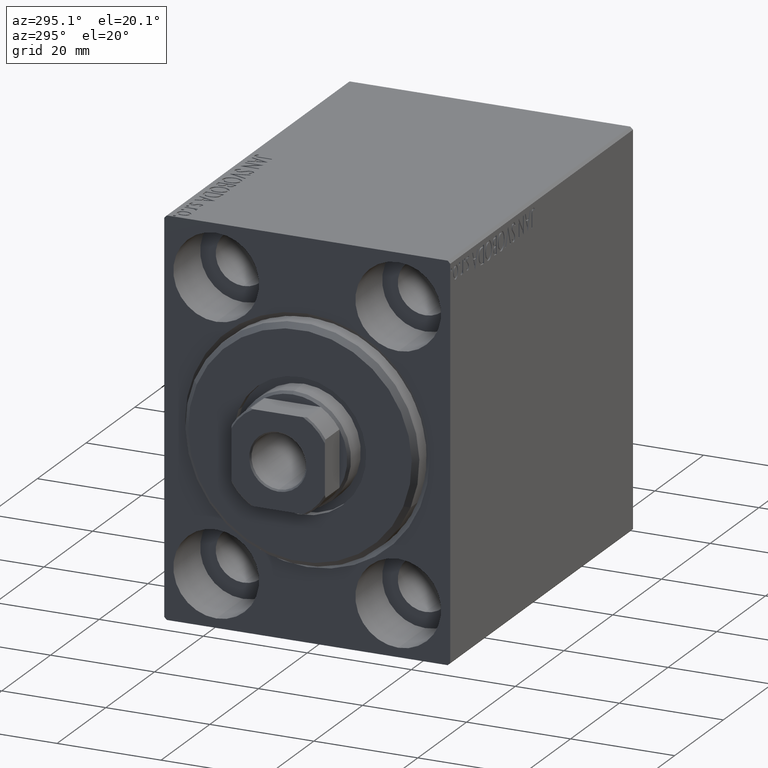
[diagram: clean part render]
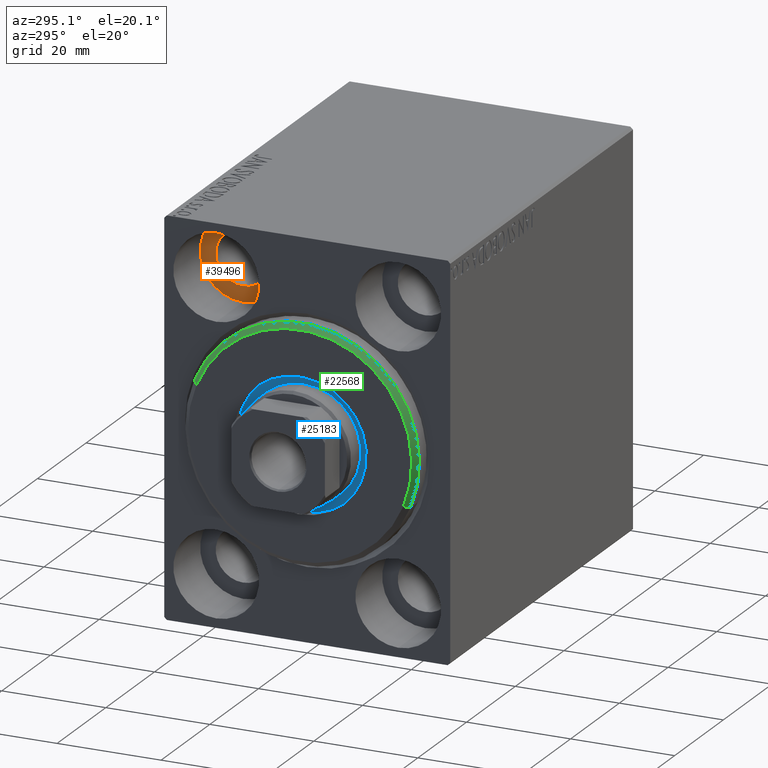
[diagram: same view with three faces highlighted in distinct colors, each labeled with its STEP entity id]
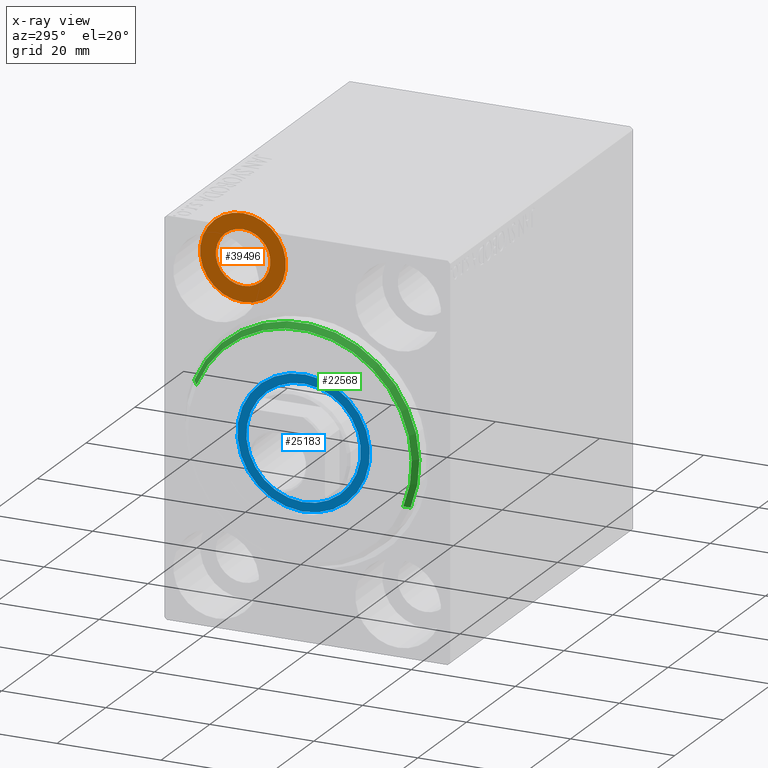
[diagram: x-ray of the same camera — body ghosted, the three highlighted faces saturated]
A machine part, auxiliary view with three faces highlighted in distinct colors.
The next image is the same camera in x-ray (body ghosted, the three faces saturated) — at least one of them is partly hidden behind the body in this view.
Their STEP definitions:

[orange] entity #39496 — the highlighted planar face has unit normal (-1, 0, 0).
#883 = EDGE_CURVE ( 'NONE', #13331, #31165, #38472, .T. ) ;
#1480 = CIRCLE ( 'NONE', #25400, 5.249999999999997335 ) ;
#2050 = CARTESIAN_POINT ( 'NONE',  ( 10.99999999999999645, 17.50000000000000355, 27.49999999999999645 ) ) ;
#6973 = PLANE ( 'NONE',  #41236 ) ;
#8971 = ORIENTED_EDGE ( 'NONE', *, *, #24203, .T. ) ;
#11241 = DIRECTION ( 'NONE',  ( -1.000000000000000000, 0.000000000000000000, 0.000000000000000000 ) ) ;
#11558 = DIRECTION ( 'NONE',  ( -1.000000000000000000, 0.000000000000000000, 0.000000000000000000 ) ) ;
#12026 = CIRCLE ( 'NONE', #19769, 8.249999999999992895 ) ;
#12912 = EDGE_LOOP ( 'NONE', ( #8971, #22614 ) ) ;
#13158 = AXIS2_PLACEMENT_3D ( 'NONE', #2050, #41734, #22102 ) ;
#13331 = VERTEX_POINT ( 'NONE', #30750 ) ;
#13587 = DIRECTION ( 'NONE',  ( -1.000000000000000000, 0.000000000000000000, 0.000000000000000000 ) ) ;
#15631 = EDGE_CURVE ( 'NONE', #31165, #13331, #1480, .T. ) ;
#15920 = CARTESIAN_POINT ( 'NONE',  ( 10.99999999999999645, 17.50000000000000355, 32.74999999999999289 ) ) ;
#16309 = CARTESIAN_POINT ( 'NONE',  ( 11.00000000000000000, 17.50000000000000355, 19.25000000000000000 ) ) ;
#18631 = VERTEX_POINT ( 'NONE', #16309 ) ;
#19038 = CARTESIAN_POINT ( 'NONE',  ( 11.00000000000000000, 17.50000000000000355, 27.49999999999999645 ) ) ;
#19769 = AXIS2_PLACEMENT_3D ( 'NONE', #19038, #11558, #32052 ) ;
#19836 = ORIENTED_EDGE ( 'NONE', *, *, #15631, .F. ) ;
#19952 = EDGE_CURVE ( 'NONE', #18631, #36306, #12026, .T. ) ;
#22102 = DIRECTION ( 'NONE',  ( 0.000000000000000000, 0.000000000000000000, 1.000000000000000000 ) ) ;
#22233 = DIRECTION ( 'NONE',  ( 0.000000000000000000, 0.000000000000000000, 1.000000000000000000 ) ) ;
#22614 = ORIENTED_EDGE ( 'NONE', *, *, #19952, .T. ) ;
#23283 = FACE_BOUND ( 'NONE', #29431, .T. ) ;
#23977 = CARTESIAN_POINT ( 'NONE',  ( 11.00000000000000000, 17.50000000000000355, 35.74999999999999289 ) ) ;
#24203 = EDGE_CURVE ( 'NONE', #36306, #18631, #36086, .T. ) ;
#25400 = AXIS2_PLACEMENT_3D ( 'NONE', #32584, #39405, #38751 ) ;
#27242 = FACE_OUTER_BOUND ( 'NONE', #12912, .T. ) ;
#27623 = AXIS2_PLACEMENT_3D ( 'NONE', #34811, #11241, #22233 ) ;
#29431 = EDGE_LOOP ( 'NONE', ( #19836, #39136 ) ) ;
#30750 = CARTESIAN_POINT ( 'NONE',  ( 10.99999999999999645, 17.50000000000000355, 22.25000000000000000 ) ) ;
#30769 = DIRECTION ( 'NONE',  ( 0.000000000000000000, 0.000000000000000000, 1.000000000000000000 ) ) ;
#31165 = VERTEX_POINT ( 'NONE', #15920 ) ;
#32052 = DIRECTION ( 'NONE',  ( 0.000000000000000000, 0.000000000000000000, 1.000000000000000000 ) ) ;
#32584 = CARTESIAN_POINT ( 'NONE',  ( 10.99999999999999645, 17.50000000000000355, 27.49999999999999645 ) ) ;
#33210 = CARTESIAN_POINT ( 'NONE',  ( 11.00000000000000000, 0.000000000000000000, 0.000000000000000000 ) ) ;
#34811 = CARTESIAN_POINT ( 'NONE',  ( 11.00000000000000000, 17.50000000000000355, 27.49999999999999645 ) ) ;
#36086 = CIRCLE ( 'NONE', #27623, 8.249999999999992895 ) ;
#36306 = VERTEX_POINT ( 'NONE', #23977 ) ;
#38472 = CIRCLE ( 'NONE', #13158, 5.249999999999997335 ) ;
#38751 = DIRECTION ( 'NONE',  ( 0.000000000000000000, 0.000000000000000000, 1.000000000000000000 ) ) ;
#39136 = ORIENTED_EDGE ( 'NONE', *, *, #883, .F. ) ;
#39405 = DIRECTION ( 'NONE',  ( -1.000000000000000000, 0.000000000000000000, 0.000000000000000000 ) ) ;
#39496 = ADVANCED_FACE ( 'NONE', ( #23283, #27242 ), #6973, .T. ) ;
#41236 = AXIS2_PLACEMENT_3D ( 'NONE', #33210, #13587, #30769 ) ;
#41734 = DIRECTION ( 'NONE',  ( -1.000000000000000000, 0.000000000000000000, 0.000000000000000000 ) ) ;

[blue] entity #25183 — the highlighted planar face has unit normal (-1, 0, 0).
#1049 = AXIS2_PLACEMENT_3D ( 'NONE', #2844, #9034, #19387 ) ;
#1883 = EDGE_LOOP ( 'NONE', ( #9882, #14095 ) ) ;
#2260 = CIRCLE ( 'NONE', #7891, 12.75000000000000000 ) ;
#2820 = VERTEX_POINT ( 'NONE', #30270 ) ;
#2844 = CARTESIAN_POINT ( 'NONE',  ( 1.499999999999999556, 0.000000000000000000, 0.000000000000000000 ) ) ;
#3486 = DIRECTION ( 'NONE',  ( 0.000000000000000000, 0.000000000000000000, -1.000000000000000000 ) ) ;
#3734 = CARTESIAN_POINT ( 'NONE',  ( 1.500000000000000000, 0.000000000000000000, 0.000000000000000000 ) ) ;
#7045 = FACE_BOUND ( 'NONE', #17762, .T. ) ;
#7815 = ORIENTED_EDGE ( 'NONE', *, *, #38005, .F. ) ;
#7891 = AXIS2_PLACEMENT_3D ( 'NONE', #31943, #31503, #15197 ) ;
#8297 = DIRECTION ( 'NONE',  ( 0.000000000000000000, 0.000000000000000000, -1.000000000000000000 ) ) ;
#9034 = DIRECTION ( 'NONE',  ( 1.000000000000000000, 0.000000000000000000, 0.000000000000000000 ) ) ;
#9882 = ORIENTED_EDGE ( 'NONE', *, *, #23269, .T. ) ;
#11605 = DIRECTION ( 'NONE',  ( 0.000000000000000000, 0.000000000000000000, -1.000000000000000000 ) ) ;
#14095 = ORIENTED_EDGE ( 'NONE', *, *, #34712, .T. ) ;
#15197 = DIRECTION ( 'NONE',  ( 0.000000000000000000, 0.000000000000000000, -1.000000000000000000 ) ) ;
#15800 = AXIS2_PLACEMENT_3D ( 'NONE', #3734, #28356, #8297 ) ;
#17555 = CARTESIAN_POINT ( 'NONE',  ( 1.500000000000000000, 1.561424668912874914E-15, -12.75000000000000000 ) ) ;
#17762 = EDGE_LOOP ( 'NONE', ( #7815, #40517 ) ) ;
#17962 = AXIS2_PLACEMENT_3D ( 'NONE', #24413, #37858, #3486 ) ;
#18870 = PLANE ( 'NONE',  #24096 ) ;
#19387 = DIRECTION ( 'NONE',  ( 0.000000000000000000, 0.000000000000000000, -1.000000000000000000 ) ) ;
#20071 = CIRCLE ( 'NONE', #1049, 11.00000000000000000 ) ;
#20751 = CIRCLE ( 'NONE', #17962, 11.00000000000000000 ) ;
#23269 = EDGE_CURVE ( 'NONE', #2820, #33770, #2260, .T. ) ;
#23353 = FACE_OUTER_BOUND ( 'NONE', #1883, .T. ) ;
#24040 = CARTESIAN_POINT ( 'NONE',  ( 1.499999999999999556, 1.347111479062088405E-15, 11.00000000000000000 ) ) ;
#24096 = AXIS2_PLACEMENT_3D ( 'NONE', #31878, #32314, #11605 ) ;
#24413 = CARTESIAN_POINT ( 'NONE',  ( 1.499999999999999556, 0.000000000000000000, 0.000000000000000000 ) ) ;
#25183 = ADVANCED_FACE ( 'NONE', ( #7045, #23353 ), #18870, .T. ) ;
#28356 = DIRECTION ( 'NONE',  ( 1.000000000000000000, 0.000000000000000000, 0.000000000000000000 ) ) ;
#29032 = VERTEX_POINT ( 'NONE', #34449 ) ;
#29169 = CIRCLE ( 'NONE', #15800, 12.75000000000000000 ) ;
#30270 = CARTESIAN_POINT ( 'NONE',  ( 1.500000000000000000, 0.000000000000000000, 12.75000000000000000 ) ) ;
#31503 = DIRECTION ( 'NONE',  ( 1.000000000000000000, 0.000000000000000000, 0.000000000000000000 ) ) ;
#31878 = CARTESIAN_POINT ( 'NONE',  ( 1.500000000000000000, 0.000000000000000000, 0.000000000000000000 ) ) ;
#31943 = CARTESIAN_POINT ( 'NONE',  ( 1.500000000000000000, 0.000000000000000000, 0.000000000000000000 ) ) ;
#32314 = DIRECTION ( 'NONE',  ( 1.000000000000000000, 0.000000000000000000, 0.000000000000000000 ) ) ;
#33770 = VERTEX_POINT ( 'NONE', #17555 ) ;
#34449 = CARTESIAN_POINT ( 'NONE',  ( 1.499999999999999556, 0.000000000000000000, -11.00000000000000000 ) ) ;
#34712 = EDGE_CURVE ( 'NONE', #33770, #2820, #29169, .T. ) ;
#36807 = VERTEX_POINT ( 'NONE', #24040 ) ;
#37149 = EDGE_CURVE ( 'NONE', #36807, #29032, #20751, .T. ) ;
#37858 = DIRECTION ( 'NONE',  ( 1.000000000000000000, 0.000000000000000000, 0.000000000000000000 ) ) ;
#38005 = EDGE_CURVE ( 'NONE', #29032, #36807, #20071, .T. ) ;
#40517 = ORIENTED_EDGE ( 'NONE', *, *, #37149, .F. ) ;

[green] entity #22568 — the highlighted conical surface has half-angle 45 deg.
#1019 = ORIENTED_EDGE ( 'NONE', *, *, #38345, .F. ) ;
#1262 = EDGE_CURVE ( 'NONE', #31968, #33619, #13884, .T. ) ;
#1838 = DIRECTION ( 'NONE',  ( -1.000000000000000000, 0.000000000000000000, 0.000000000000000000 ) ) ;
#2027 = DIRECTION ( 'NONE',  ( -0.7071067811865487940, 8.659560562354919300E-17, -0.7071067811865463515 ) ) ;
#2054 = FACE_OUTER_BOUND ( 'NONE', #29804, .T. ) ;
#2592 = CARTESIAN_POINT ( 'NONE',  ( 1.999999999999999112, 0.000000000000000000, 22.50000000000000355 ) ) ;
#3123 = ORIENTED_EDGE ( 'NONE', *, *, #1262, .T. ) ;
#8842 = AXIS2_PLACEMENT_3D ( 'NONE', #8925, #24847, #41600 ) ;
#8925 = CARTESIAN_POINT ( 'NONE',  ( 1.999999999999999112, 0.000000000000000000, 0.000000000000000000 ) ) ;
#9130 = VERTEX_POINT ( 'NONE', #38134 ) ;
#10673 = CONICAL_SURFACE ( 'NONE', #16314, 21.50000000000000355, 0.7853981633974466137 ) ;
#12831 = LINE ( 'NONE', #26268, #25790 ) ;
#13486 = VERTEX_POINT ( 'NONE', #42828 ) ;
#13884 = LINE ( 'NONE', #28414, #35647 ) ;
#14808 = CARTESIAN_POINT ( 'NONE',  ( 3.000000000000000000, 0.000000000000000000, 0.000000000000000000 ) ) ;
#16314 = AXIS2_PLACEMENT_3D ( 'NONE', #28956, #1838, #35560 ) ;
#22568 = ADVANCED_FACE ( 'NONE', ( #2054 ), #10673, .T. ) ;
#23738 = AXIS2_PLACEMENT_3D ( 'NONE', #14808, #34043, #40867 ) ;
#24847 = DIRECTION ( 'NONE',  ( -1.000000000000000000, 0.000000000000000000, 0.000000000000000000 ) ) ;
#25790 = VECTOR ( 'NONE', #2027, 1000.000000000000000 ) ;
#26268 = CARTESIAN_POINT ( 'NONE',  ( 3.000000000000000000, 2.632990618166810024E-15, -21.50000000000000355 ) ) ;
#28414 = CARTESIAN_POINT ( 'NONE',  ( 3.000000000000000000, 0.000000000000000000, 21.50000000000000355 ) ) ;
#28956 = CARTESIAN_POINT ( 'NONE',  ( 3.000000000000000000, 0.000000000000000000, 0.000000000000000000 ) ) ;
#29804 = EDGE_LOOP ( 'NONE', ( #42051, #41400, #3123, #1019 ) ) ;
#31364 = CIRCLE ( 'NONE', #8842, 22.50000000000000355 ) ;
#31502 = DIRECTION ( 'NONE',  ( -0.7071067811865487940, 0.000000000000000000, 0.7071067811865463515 ) ) ;
#31968 = VERTEX_POINT ( 'NONE', #43442 ) ;
#33619 = VERTEX_POINT ( 'NONE', #2592 ) ;
#34043 = DIRECTION ( 'NONE',  ( 1.000000000000000000, -0.000000000000000000, 0.000000000000000000 ) ) ;
#35560 = DIRECTION ( 'NONE',  ( 0.000000000000000000, 0.000000000000000000, 1.000000000000000000 ) ) ;
#35647 = VECTOR ( 'NONE', #31502, 1000.000000000000000 ) ;
#35701 = CIRCLE ( 'NONE', #23738, 21.50000000000000355 ) ;
#38134 = CARTESIAN_POINT ( 'NONE',  ( 3.000000000000000000, 2.694222958124177598E-15, -21.50000000000000355 ) ) ;
#38345 = EDGE_CURVE ( 'NONE', #13486, #33619, #31364, .T. ) ;
#40795 = EDGE_CURVE ( 'NONE', #9130, #13486, #12831, .T. ) ;
#40867 = DIRECTION ( 'NONE',  ( 0.000000000000000000, 0.000000000000000000, -1.000000000000000000 ) ) ;
#41400 = ORIENTED_EDGE ( 'NONE', *, *, #43129, .F. ) ;
#41600 = DIRECTION ( 'NONE',  ( 0.000000000000000000, 0.000000000000000000, -1.000000000000000000 ) ) ;
#42051 = ORIENTED_EDGE ( 'NONE', *, *, #40795, .F. ) ;
#42828 = CARTESIAN_POINT ( 'NONE',  ( 1.999999999999999112, 2.755455298081545172E-15, -22.50000000000000355 ) ) ;
#43129 = EDGE_CURVE ( 'NONE', #31968, #9130, #35701, .T. ) ;
#43442 = CARTESIAN_POINT ( 'NONE',  ( 3.000000000000000000, 0.000000000000000000, 21.50000000000000355 ) ) ;